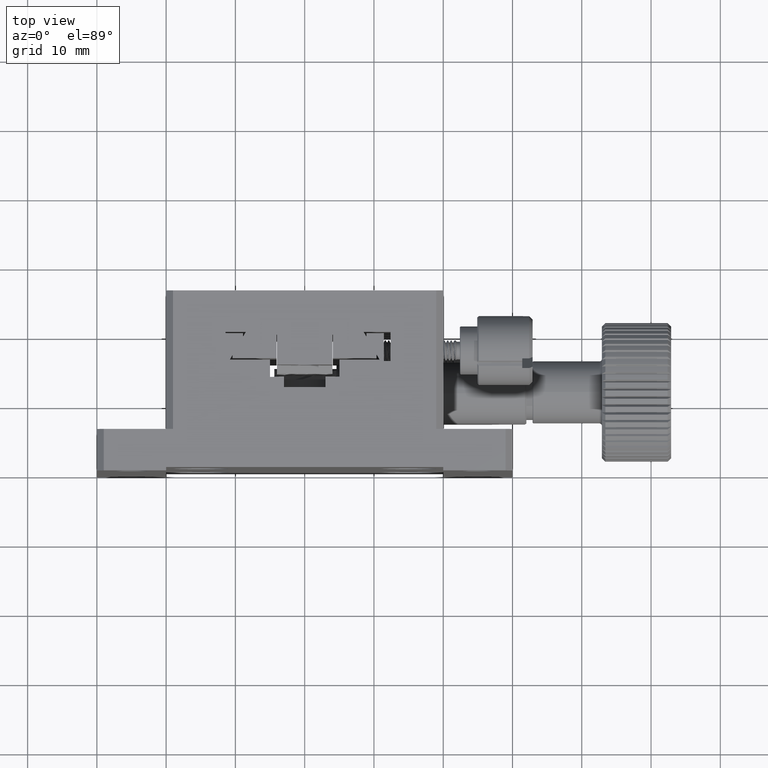
[diagram: clean part render]
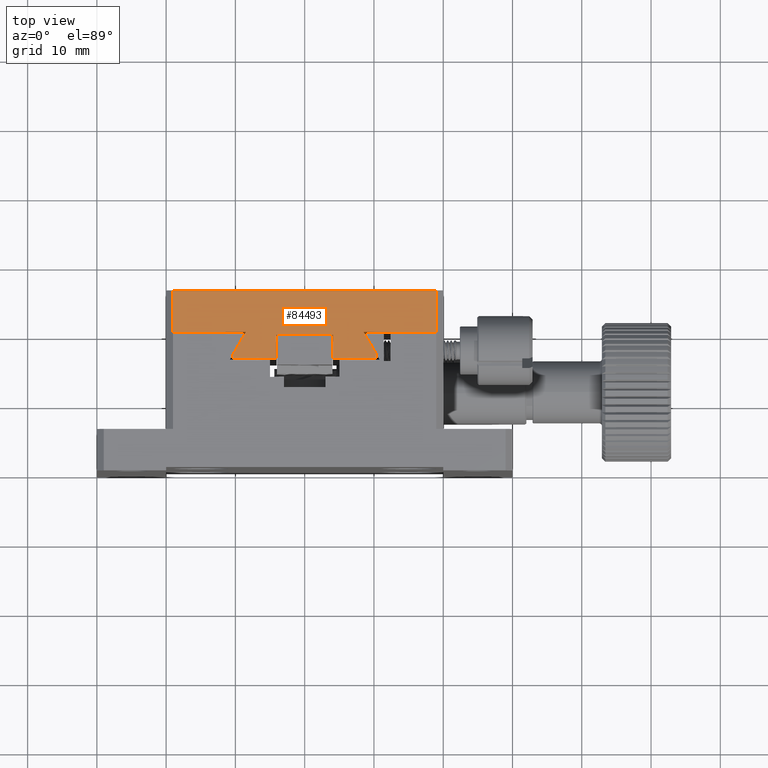
[diagram: same view with one face highlighted and labeled with its STEP entity id]
A machine part, top view. The second image highlights one B-rep face of the part: STEP entity #84493.
In plain terms, the highlighted planar face has unit normal (0, 0, -1).
Its self-contained STEP definition (entity closure, byte-faithful):
#1261 = CARTESIAN_POINT ( 'NONE',  ( 25.94999999999859241, 19.60000000000313491, 59.99999999999998579 ) ) ;
#1833 = CARTESIAN_POINT ( 'NONE',  ( 11.00000000000283329, 26.00000000000313349, 59.99999999999998579 ) ) ;
#2136 = CARTESIAN_POINT ( 'NONE',  ( 38.49999999999435829, 20.00000000000313349, 59.99999999999998579 ) ) ;
#2549 = VECTOR ( 'NONE', #69511, 1000.000000000000114 ) ;
#3967 = VECTOR ( 'NONE', #35540, 1000.000000000000000 ) ;
#6067 = EDGE_CURVE ( 'NONE', #15009, #45345, #47282, .T. ) ;
#6616 = VECTOR ( 'NONE', #91762, 1000.000000000000000 ) ;
#6697 = CARTESIAN_POINT ( 'NONE',  ( 48.99999999999438671, 20.00000000000313349, 59.99999999999998579 ) ) ;
#7087 = EDGE_CURVE ( 'NONE', #66922, #45345, #48340, .T. ) ;
#7440 = CARTESIAN_POINT ( 'NONE',  ( 10.00000000000281908, 26.00000000000313349, 59.99999999999998579 ) ) ;
#9014 = DIRECTION ( 'NONE',  ( -0.000000000000000000, -1.000000000000000000, -0.000000000000000000 ) ) ;
#10315 = DIRECTION ( 'NONE',  ( -1.000000000000000000, 0.000000000000000000, -0.000000000000000000 ) ) ;
#12463 = LINE ( 'NONE', #77131, #101463 ) ;
#12554 = ORIENTED_EDGE ( 'NONE', *, *, #103248, .F. ) ;
#12767 = EDGE_CURVE ( 'NONE', #16182, #96358, #53406, .T. ) ;
#14127 = DIRECTION ( 'NONE',  ( -0.000000000000000000, -1.000000000000000000, -0.000000000000000000 ) ) ;
#15009 = VERTEX_POINT ( 'NONE', #70113 ) ;
#16070 = EDGE_CURVE ( 'NONE', #62035, #59489, #37815, .T. ) ;
#16182 = VERTEX_POINT ( 'NONE', #55708 ) ;
#16546 = LINE ( 'NONE', #1833, #27767 ) ;
#19747 = CARTESIAN_POINT ( 'NONE',  ( 21.50000000000281730, 20.00000000000313349, 59.99999999999998579 ) ) ;
#21744 = CARTESIAN_POINT ( 'NONE',  ( 19.60606897708209218, 16.20000000000313278, 59.99999999999998579 ) ) ;
#22019 = CARTESIAN_POINT ( 'NONE',  ( 38.49999999999435829, 20.00000000000313349, 59.99999999999998579 ) ) ;
#22699 = CARTESIAN_POINT ( 'NONE',  ( 19.60606897708209218, 16.71961524227353735, 59.99999999999998579 ) ) ;
#22814 = DIRECTION ( 'NONE',  ( 0.000000000000000000, 0.000000000000000000, -1.000000000000000000 ) ) ;
#23379 = VECTOR ( 'NONE', #10315, 1000.000000000000000 ) ;
#23868 = PLANE ( 'NONE',  #51488 ) ;
#25093 = VERTEX_POINT ( 'NONE', #102442 ) ;
#25733 = CARTESIAN_POINT ( 'NONE',  ( 40.39393102291524684, 16.20000000000313278, 59.99999999999998579 ) ) ;
#25790 = VERTEX_POINT ( 'NONE', #70905 ) ;
#27767 = VECTOR ( 'NONE', #76298, 1000.000000000000000 ) ;
#28400 = VECTOR ( 'NONE', #57808, 1000.000000000000000 ) ;
#28763 = DIRECTION ( 'NONE',  ( 0.000000000000000000, 1.000000000000000000, 0.000000000000000000 ) ) ;
#29296 = ORIENTED_EDGE ( 'NONE', *, *, #49549, .T. ) ;
#32024 = CARTESIAN_POINT ( 'NONE',  ( 29.99999999999858957, 26.00000000000313349, 59.99999999999998579 ) ) ;
#32453 = DIRECTION ( 'NONE',  ( 0.4999999999999997780, 0.8660254037844388186, 0.000000000000000000 ) ) ;
#35540 = DIRECTION ( 'NONE',  ( -0.000000000000000000, -1.000000000000000000, -0.000000000000000000 ) ) ;
#37815 = LINE ( 'NONE', #95939, #74568 ) ;
#37954 = VECTOR ( 'NONE', #9014, 1000.000000000000000 ) ;
#40182 = CARTESIAN_POINT ( 'NONE',  ( 40.39393102291523974, 16.71961524227353380, 59.99999999999998579 ) ) ;
#40237 = ORIENTED_EDGE ( 'NONE', *, *, #7087, .F. ) ;
#40593 = DIRECTION ( 'NONE',  ( -1.000000000000000000, -0.000000000000000000, -0.000000000000000000 ) ) ;
#40674 = EDGE_CURVE ( 'NONE', #107286, #40749, #62793, .T. ) ;
#40749 = VERTEX_POINT ( 'NONE', #22019 ) ;
#41032 = ORIENTED_EDGE ( 'NONE', *, *, #52649, .F. ) ;
#41519 = LINE ( 'NONE', #25733, #28400 ) ;
#41861 = VECTOR ( 'NONE', #40593, 1000.000000000000000 ) ;
#42514 = CARTESIAN_POINT ( 'NONE',  ( 25.94999999999859241, 16.20000000000313278, 59.99999999999998579 ) ) ;
#45345 = VERTEX_POINT ( 'NONE', #83362 ) ;
#45844 = CARTESIAN_POINT ( 'NONE',  ( 34.04999999999859028, 16.20000000000313634, 59.99999999999998579 ) ) ;
#46501 = CARTESIAN_POINT ( 'NONE',  ( 29.99999999999858957, 20.00000000000313705, 59.99999999999998579 ) ) ;
#47282 = LINE ( 'NONE', #21744, #67282 ) ;
#48340 = LINE ( 'NONE', #65164, #6616 ) ;
#49549 = EDGE_CURVE ( 'NONE', #25790, #83572, #82961, .T. ) ;
#49889 = ORIENTED_EDGE ( 'NONE', *, *, #89746, .F. ) ;
#51488 = AXIS2_PLACEMENT_3D ( 'NONE', #32024, #22814, #63570 ) ;
#51589 = ORIENTED_EDGE ( 'NONE', *, *, #103185, .F. ) ;
#51830 = CARTESIAN_POINT ( 'NONE',  ( 25.94999999999859241, 26.00000000000313349, 59.99999999999998579 ) ) ;
#52649 = EDGE_CURVE ( 'NONE', #25790, #107286, #67147, .T. ) ;
#53406 = LINE ( 'NONE', #78950, #91806 ) ;
#54641 = DIRECTION ( 'NONE',  ( -1.000000000000000000, 0.000000000000000000, -0.000000000000000000 ) ) ;
#55708 = CARTESIAN_POINT ( 'NONE',  ( 34.04999999999859028, 19.60000000000313491, 59.99999999999998579 ) ) ;
#56912 = LINE ( 'NONE', #22699, #104817 ) ;
#57808 = DIRECTION ( 'NONE',  ( 0.000000000000000000, 1.000000000000000000, -0.000000000000000000 ) ) ;
#58685 = LINE ( 'NONE', #77670, #23379 ) ;
#59205 = EDGE_CURVE ( 'NONE', #25093, #83572, #16546, .T. ) ;
#59489 = VERTEX_POINT ( 'NONE', #45844 ) ;
#59723 = ORIENTED_EDGE ( 'NONE', *, *, #6067, .T. ) ;
#60517 = LINE ( 'NONE', #51830, #3967 ) ;
#61563 = DIRECTION ( 'NONE',  ( -1.000000000000000000, 0.000000000000000000, -0.000000000000000000 ) ) ;
#61910 = LINE ( 'NONE', #2136, #2549 ) ;
#62035 = VERTEX_POINT ( 'NONE', #99848 ) ;
#62793 = LINE ( 'NONE', #46501, #81515 ) ;
#62859 = ORIENTED_EDGE ( 'NONE', *, *, #16070, .F. ) ;
#63570 = DIRECTION ( 'NONE',  ( -1.000000000000000000, 0.000000000000000000, -0.000000000000000000 ) ) ;
#65164 = CARTESIAN_POINT ( 'NONE',  ( 29.99999999999858957, 16.20000000000313278, 59.99999999999998579 ) ) ;
#66922 = VERTEX_POINT ( 'NONE', #42514 ) ;
#66946 = ORIENTED_EDGE ( 'NONE', *, *, #103109, .F. ) ;
#67147 = LINE ( 'NONE', #100278, #37954 ) ;
#67282 = VECTOR ( 'NONE', #14127, 1000.000000000000000 ) ;
#69511 = DIRECTION ( 'NONE',  ( 0.5000000000000319744, -0.8660254037844201669, 0.000000000000000000 ) ) ;
#70113 = CARTESIAN_POINT ( 'NONE',  ( 19.60606897708206731, 16.71961524227366525, 59.99999999999998579 ) ) ;
#70177 = ORIENTED_EDGE ( 'NONE', *, *, #98376, .T. ) ;
#70905 = CARTESIAN_POINT ( 'NONE',  ( 48.99999999999445066, 26.00000000000313349, 60.00000000000002132 ) ) ;
#74568 = VECTOR ( 'NONE', #54641, 1000.000000000000000 ) ;
#76298 = DIRECTION ( 'NONE',  ( 0.000000000000000000, 1.000000000000000000, 0.000000000000000000 ) ) ;
#77131 = CARTESIAN_POINT ( 'NONE',  ( 34.04999999999859028, 26.00000000000313349, 59.99999999999998579 ) ) ;
#77670 = CARTESIAN_POINT ( 'NONE',  ( 29.99999999999858957, 20.00000000000313349, 59.99999999999998579 ) ) ;
#78950 = CARTESIAN_POINT ( 'NONE',  ( 29.99999999999858957, 19.60000000000313491, 59.99999999999998579 ) ) ;
#81443 = ORIENTED_EDGE ( 'NONE', *, *, #59205, .F. ) ;
#81515 = VECTOR ( 'NONE', #96455, 1000.000000000000000 ) ;
#82961 = LINE ( 'NONE', #7440, #41861 ) ;
#83362 = CARTESIAN_POINT ( 'NONE',  ( 19.60606897708209218, 16.20000000000313278, 59.99999999999998579 ) ) ;
#83572 = VERTEX_POINT ( 'NONE', #97494 ) ;
#84090 = ORIENTED_EDGE ( 'NONE', *, *, #12767, .F. ) ;
#84493 = ADVANCED_FACE ( 'NONE', ( #105940 ), #23868, .F. ) ;
#84752 = VERTEX_POINT ( 'NONE', #40182 ) ;
#85409 = EDGE_LOOP ( 'NONE', ( #81443, #66946, #49889, #59723, #40237, #101560, #84090, #51589, #62859, #70177, #12554, #94247, #41032, #29296 ) ) ;
#89746 = EDGE_CURVE ( 'NONE', #15009, #96908, #56912, .T. ) ;
#91762 = DIRECTION ( 'NONE',  ( -1.000000000000000000, 0.000000000000000000, -0.000000000000000000 ) ) ;
#91806 = VECTOR ( 'NONE', #61563, 1000.000000000000000 ) ;
#93139 = EDGE_CURVE ( 'NONE', #96358, #66922, #60517, .T. ) ;
#94247 = ORIENTED_EDGE ( 'NONE', *, *, #40674, .F. ) ;
#95939 = CARTESIAN_POINT ( 'NONE',  ( 29.99999999999858957, 16.20000000000313278, 59.99999999999998579 ) ) ;
#96358 = VERTEX_POINT ( 'NONE', #1261 ) ;
#96455 = DIRECTION ( 'NONE',  ( -1.000000000000000000, 0.000000000000000000, -0.000000000000000000 ) ) ;
#96908 = VERTEX_POINT ( 'NONE', #19747 ) ;
#97494 = CARTESIAN_POINT ( 'NONE',  ( 11.00000000000283329, 26.00000000000313349, 59.99999999999998579 ) ) ;
#98376 = EDGE_CURVE ( 'NONE', #62035, #84752, #41519, .T. ) ;
#99848 = CARTESIAN_POINT ( 'NONE',  ( 40.39393102291524684, 16.20000000000313634, 59.99999999999998579 ) ) ;
#100278 = CARTESIAN_POINT ( 'NONE',  ( 48.99999999999448619, 26.00000000000313349, 59.99999999999998579 ) ) ;
#101463 = VECTOR ( 'NONE', #28763, 1000.000000000000000 ) ;
#101560 = ORIENTED_EDGE ( 'NONE', *, *, #93139, .F. ) ;
#102442 = CARTESIAN_POINT ( 'NONE',  ( 11.00000000000283329, 20.00000000000313349, 59.99999999999998579 ) ) ;
#103109 = EDGE_CURVE ( 'NONE', #96908, #25093, #58685, .T. ) ;
#103185 = EDGE_CURVE ( 'NONE', #59489, #16182, #12463, .T. ) ;
#103248 = EDGE_CURVE ( 'NONE', #40749, #84752, #61910, .T. ) ;
#104817 = VECTOR ( 'NONE', #32453, 1000.000000000000114 ) ;
#105940 = FACE_OUTER_BOUND ( 'NONE', #85409, .T. ) ;
#107286 = VERTEX_POINT ( 'NONE', #6697 ) ;